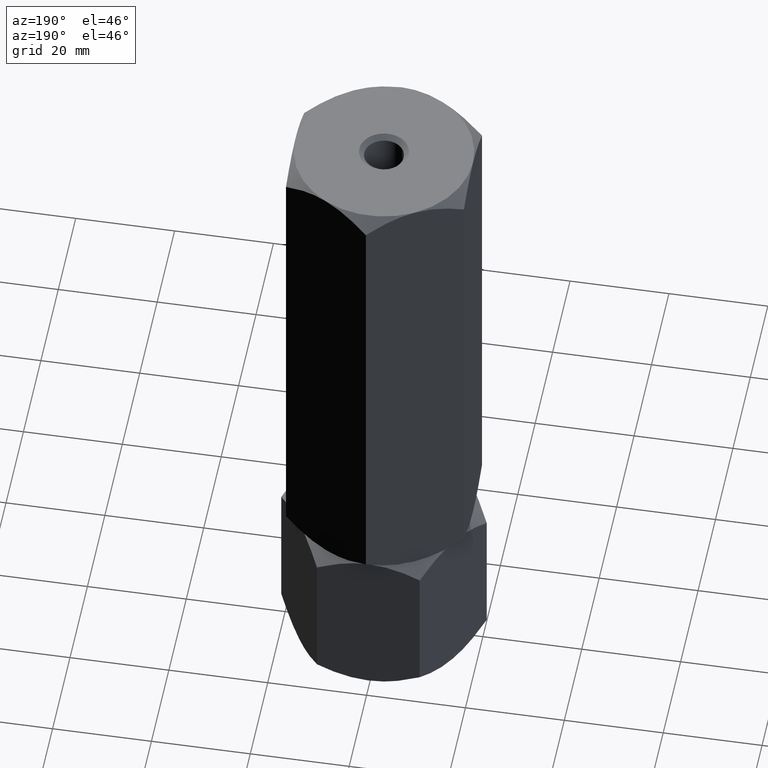
[diagram: clean part render]
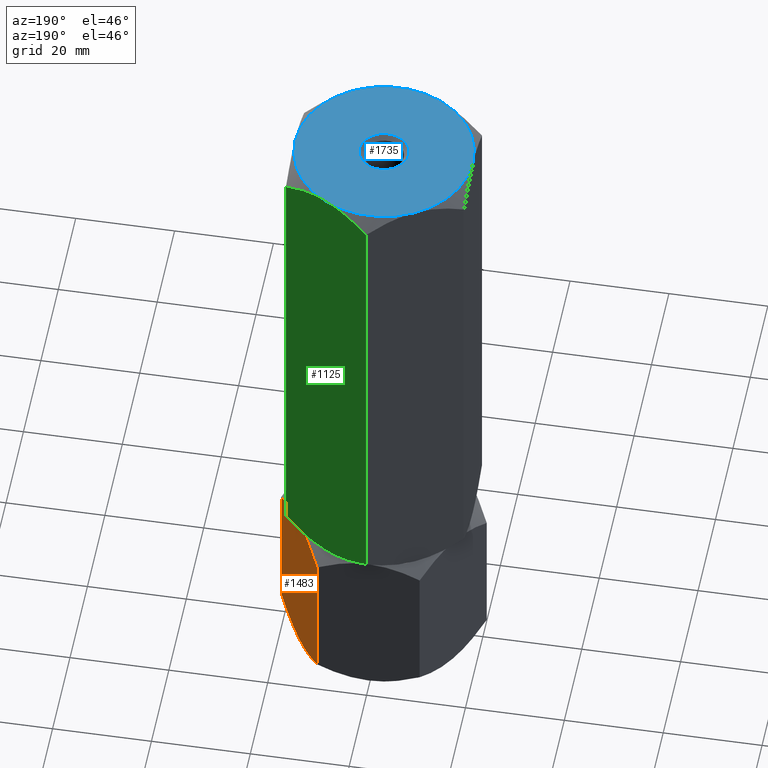
[diagram: same view with three faces highlighted in distinct colors, each labeled with its STEP entity id]
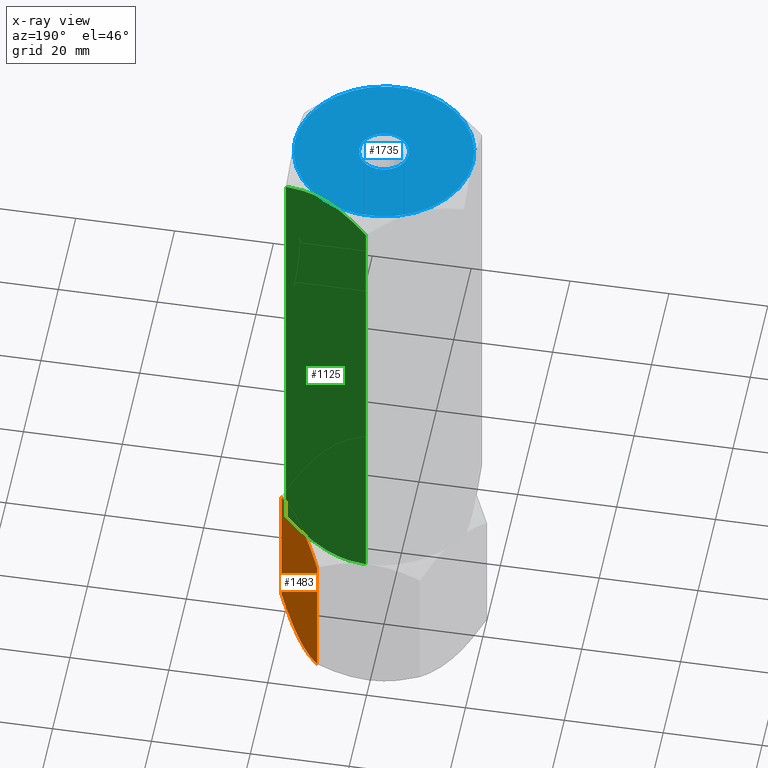
[diagram: x-ray of the same camera — body ghosted, the three highlighted faces saturated]
A machine part, auxiliary view with three faces highlighted in distinct colors.
The next image is the same camera in x-ray (body ghosted, the three faces saturated) — at least one of them is partly hidden behind the body in this view.
Their STEP definitions:

[orange] entity #1483 — the highlighted planar face has unit normal (-0.866, -0.5, 0).
#42 = CARTESIAN_POINT ( 'NONE',  ( 19.13650452186755757, 2.854601888853812497, 32.05595025544343457 ) ) ;
#86 = CARTESIAN_POINT ( 'NONE',  ( 14.44719758599053350, 10.97671975407795486, 0.1387225990985758162 ) ) ;
#91 = ORIENTED_EDGE ( 'NONE', *, *, #1867, .F. ) ;
#142 = B_SPLINE_CURVE_WITH_KNOTS ( 'NONE', 3,
 ( #878, #1704, #1720, #1199, #1868, #901 ),
 .UNSPECIFIED., .F., .F.,
 ( 4, 2, 4 ),
 ( 0.01077282027732747588, 0.01612137750481873813, 0.02146993473231000038 ),
 .UNSPECIFIED. ) ;
#159 = CARTESIAN_POINT ( 'NONE',  ( 10.39230484541325872, 18.00000000000000000, 33.33333333333330017 ) ) ;
#173 = DIRECTION ( 'NONE',  ( -0.000000000000000000, -0.000000000000000000, -1.000000000000000000 ) ) ;
#191 = CARTESIAN_POINT ( 'NONE',  ( 20.78460969082652809, 2.339913672068599110E-16, 30.54872364250677919 ) ) ;
#204 = CARTESIAN_POINT ( 'NONE',  ( 16.04483044561309057, 8.209538469370126990, 33.31600047685920885 ) ) ;
#239 = CARTESIAN_POINT ( 'NONE',  ( 11.20713682960488100, 16.58866960374795951, 1.969777706634898484 ) ) ;
#249 = CARTESIAN_POINT ( 'NONE',  ( 12.04041001437222214, 15.14539811114618928, 1.277383077889868046 ) ) ;
#262 = CARTESIAN_POINT ( 'NONE',  ( 19.13297464765287614, 2.860715810337965070, 1.272574701504243233 ) ) ;
#356 = CARTESIAN_POINT ( 'NONE',  ( 16.72971695024923733, 7.023280245922047804, 33.19461073423471476 ) ) ;
#383 = ORIENTED_EDGE ( 'NONE', *, *, #1703, .F. ) ;
#406 = CARTESIAN_POINT ( 'NONE',  ( 20.78460969082652809, 0.000000000000000000, 33.33333333333330017 ) ) ;
#434 = CARTESIAN_POINT ( 'NONE',  ( 13.77442836864821274, 12.14199022028320130, 0.3405631022552679243 ) ) ;
#479 = LINE ( 'NONE', #159, #753 ) ;
#521 = ORIENTED_EDGE ( 'NONE', *, *, #1077, .F. ) ;
#523 = CARTESIAN_POINT ( 'NONE',  ( 17.40248616759157585, 5.858009779716803145, 32.99277023107802620 ) ) ;
#530 = CARTESIAN_POINT ( 'NONE',  ( 15.58845726811989252, 9.000000000000003553, 33.33333333333330017 ) ) ;
#569 = PLANE ( 'NONE',  #955 ) ;
#595 = DIRECTION ( 'NONE',  ( 0.5000000000000002220, -0.8660254037844384856, 0.000000000000000000 ) ) ;
#603 = CARTESIAN_POINT ( 'NONE',  ( 20.78460969082652809, -4.404509159444062513E-16, 2.784609690826518769 ) ) ;
#660 = CARTESIAN_POINT ( 'NONE',  ( 17.84166640377631197, 5.097327296964722976, 32.79624777750427000 ) ) ;
#697 = ORIENTED_EDGE ( 'NONE', *, *, #1475, .F. ) ;
#715 = CARTESIAN_POINT ( 'NONE',  ( 14.67378923359657605, 10.58425150785354774, 0.08694689011815222301 ) ) ;
#729 = CARTESIAN_POINT ( 'NONE',  ( 15.13208409062669091, 9.790461530629878339, 0.01733285647408732560 ) ) ;
#753 = VECTOR ( 'NONE', #173, 1000.000000000000000 ) ;
#764 = CARTESIAN_POINT ( 'NONE',  ( 10.39230484541325872, 18.00000000000000000, 2.784609690826514328 ) ) ;
#812 = CARTESIAN_POINT ( 'NONE',  ( 19.96977770663490048, 1.411330396252048258, 31.36355562669839614 ) ) ;
#864 = CARTESIAN_POINT ( 'NONE',  ( 19.97072132548310108, 1.409696000463987353, 1.970721325483051123 ) ) ;
#869 = CARTESIAN_POINT ( 'NONE',  ( 15.58845726811989252, 9.000000000000003553, 0.000000000000000000 ) ) ;
#875 = DIRECTION ( 'NONE',  ( -0.8660254037844385966, -0.5000000000000003331, 0.000000000000000000 ) ) ;
#878 = CARTESIAN_POINT ( 'NONE',  ( 15.58845726811989252, 9.000000000000003553, 33.33333333333330017 ) ) ;
#885 = CARTESIAN_POINT ( 'NONE',  ( 16.49227650070743678, 7.434539168300463352, -2.134523027080836115E-16 ) ) ;
#901 = CARTESIAN_POINT ( 'NONE',  ( 10.39230484541325872, 18.00000000000000000, 30.54872364250678274 ) ) ;
#955 = AXIS2_PLACEMENT_3D ( 'NONE', #406, #875, #595 ) ;
#1030 = VERTEX_POINT ( 'NONE', #1235 ) ;
#1036 = CARTESIAN_POINT ( 'NONE',  ( 10.39230484541325872, 18.00000000000000000, 2.784609690826514328 ) ) ;
#1077 = EDGE_CURVE ( 'NONE', #1030, #1582, #142, .T. ) ;
#1089 = LINE ( 'NONE', #1701, #1176 ) ;
#1157 = CARTESIAN_POINT ( 'NONE',  ( 15.58845726811989252, 9.000000000000003553, 0.000000000000000000 ) ) ;
#1176 = VECTOR ( 'NONE', #1552, 1000.000000000000000 ) ;
#1199 = CARTESIAN_POINT ( 'NONE',  ( 12.04393988858690001, 15.13928418966203360, 32.06075863182906005 ) ) ;
#1207 = FACE_OUTER_BOUND ( 'NONE', #1411, .T. ) ;
#1215 = CARTESIAN_POINT ( 'NONE',  ( 13.33524813246346596, 12.90267270303527880, 0.5370855558290084097 ) ) ;
#1235 = CARTESIAN_POINT ( 'NONE',  ( 15.58845726811989252, 9.000000000000003553, 33.33333333333330017 ) ) ;
#1263 = ORIENTED_EDGE ( 'NONE', *, *, #2044, .T. ) ;
#1307 = B_SPLINE_CURVE_WITH_KNOTS ( 'NONE', 3,
 ( #191, #812, #42, #660, #523, #356, #1632, #204, #1472, #530 ),
 .UNSPECIFIED., .F., .F.,
 ( 4, 2, 2, 2, 4 ),
 ( 2.544307986817553445E-07, 0.005386537354063076002, 0.008079678815695273339, 0.009426249546511373742, 0.01077282027732747588 ),
 .UNSPECIFIED. ) ;
#1325 = VERTEX_POINT ( 'NONE', #764 ) ;
#1344 = ORIENTED_EDGE ( 'NONE', *, *, #1510, .F. ) ;
#1398 = VERTEX_POINT ( 'NONE', #1950 ) ;
#1411 = EDGE_LOOP ( 'NONE', ( #697, #1263, #1344, #91, #383, #521 ) ) ;
#1472 = CARTESIAN_POINT ( 'NONE',  ( 15.81600583360881807, 8.605874323383773117, 33.33333333333331439 ) ) ;
#1475 = EDGE_CURVE ( 'NONE', #1398, #1030, #1307, .T. ) ;
#1483 = ADVANCED_FACE ( 'NONE', ( #1207 ), #569, .F. ) ;
#1510 = EDGE_CURVE ( 'NONE', #1811, #1563, #1917, .T. ) ;
#1520 = CARTESIAN_POINT ( 'NONE',  ( 15.58845726811989252, 9.000000000000003553, 0.000000000000000000 ) ) ;
#1552 = DIRECTION ( 'NONE',  ( -0.000000000000000000, -0.000000000000000000, -1.000000000000000000 ) ) ;
#1563 = VERTEX_POINT ( 'NONE', #603 ) ;
#1567 = B_SPLINE_CURVE_WITH_KNOTS ( 'NONE', 3,
 ( #1036, #239, #249, #1215, #434, #86, #715, #729, #1706, #869 ),
 .UNSPECIFIED., .F., .F.,
 ( 4, 2, 2, 2, 4 ),
 ( 2.544307986804616605E-07, 0.005386537354063074268, 0.008079678815695271604, 0.009426249546511368538, 0.01077282027732746547 ),
 .UNSPECIFIED. ) ;
#1582 = VERTEX_POINT ( 'NONE', #1896 ) ;
#1632 = CARTESIAN_POINT ( 'NONE',  ( 16.50312530264320188, 7.415748492146455817, 33.24638644321513681 ) ) ;
#1701 = CARTESIAN_POINT ( 'NONE',  ( 20.78460969082652809, 0.000000000000000000, 33.33333333333330017 ) ) ;
#1703 = EDGE_CURVE ( 'NONE', #1582, #1325, #479, .T. ) ;
#1704 = CARTESIAN_POINT ( 'NONE',  ( 14.68463803553234470, 10.56546083169953754, 33.33333333333330017 ) ) ;
#1706 = CARTESIAN_POINT ( 'NONE',  ( 15.36090870263096519, 9.394125676616235765, 7.538593230563273018E-17 ) ) ;
#1720 = CARTESIAN_POINT ( 'NONE',  ( 13.79618737047369947, 12.10430252359948256, 33.05693742621171083 ) ) ;
#1811 = VERTEX_POINT ( 'NONE', #1157 ) ;
#1832 = CARTESIAN_POINT ( 'NONE',  ( 17.38072716576608556, 5.895697476400523662, 0.2763959071215847385 ) ) ;
#1867 = EDGE_CURVE ( 'NONE', #1325, #1811, #1567, .T. ) ;
#1868 = CARTESIAN_POINT ( 'NONE',  ( 11.20619321075668040, 16.59030399953601531, 31.36261200785025238 ) ) ;
#1896 = CARTESIAN_POINT ( 'NONE',  ( 10.39230484541325872, 18.00000000000000000, 30.54872364250678274 ) ) ;
#1917 = B_SPLINE_CURVE_WITH_KNOTS ( 'NONE', 3,
 ( #1520, #885, #1832, #262, #864, #2001 ),
 .UNSPECIFIED., .F., .F.,
 ( 4, 2, 4 ),
 ( 0.01077282027732746547, 0.01612137750481873466, 0.02146993473231000038 ),
 .UNSPECIFIED. ) ;
#1950 = CARTESIAN_POINT ( 'NONE',  ( 20.78460969082652809, 2.339913672068599110E-16, 30.54872364250677919 ) ) ;
#2001 = CARTESIAN_POINT ( 'NONE',  ( 20.78460969082652809, -4.404509159444062513E-16, 2.784609690826518769 ) ) ;
#2044 = EDGE_CURVE ( 'NONE', #1398, #1563, #1089, .T. ) ;

[blue] entity #1735 — the highlighted planar face has unit normal (0, 0, 1).
#37 = CIRCLE ( 'NONE', #1959, 4.999999999999990230 ) ;
#52 = CARTESIAN_POINT ( 'NONE',  ( 0.000000000000000000, 0.000000000000000000, 133.3333333333333144 ) ) ;
#82 = DIRECTION ( 'NONE',  ( -0.000000000000000000, -0.000000000000000000, -1.000000000000000000 ) ) ;
#118 = ORIENTED_EDGE ( 'NONE', *, *, #1338, .T. ) ;
#199 = AXIS2_PLACEMENT_3D ( 'NONE', #52, #1304, #1333 ) ;
#256 = EDGE_LOOP ( 'NONE', ( #1194, #2019 ) ) ;
#302 = VERTEX_POINT ( 'NONE', #1389 ) ;
#306 = CARTESIAN_POINT ( 'NONE',  ( 0.000000000000000000, 0.000000000000000000, 133.3333333333333144 ) ) ;
#312 = FACE_BOUND ( 'NONE', #256, .T. ) ;
#332 = DIRECTION ( 'NONE',  ( 0.000000000000000000, 0.000000000000000000, 1.000000000000000000 ) ) ;
#354 = VERTEX_POINT ( 'NONE', #945 ) ;
#362 = AXIS2_PLACEMENT_3D ( 'NONE', #306, #1414, #930 ) ;
#370 = CARTESIAN_POINT ( 'NONE',  ( 0.000000000000000000, 0.000000000000000000, 133.3333333333333144 ) ) ;
#377 = CARTESIAN_POINT ( 'NONE',  ( 0.000000000000000000, 0.000000000000000000, 133.3333333333333144 ) ) ;
#417 = VERTEX_POINT ( 'NONE', #640 ) ;
#426 = CARTESIAN_POINT ( 'NONE',  ( -9.000000000000003553, -15.58845726811989074, 133.3333333333333144 ) ) ;
#445 = EDGE_CURVE ( 'NONE', #302, #918, #1178, .T. ) ;
#504 = EDGE_CURVE ( 'NONE', #918, #1938, #947, .T. ) ;
#525 = ORIENTED_EDGE ( 'NONE', *, *, #835, .T. ) ;
#533 = AXIS2_PLACEMENT_3D ( 'NONE', #370, #1829, #694 ) ;
#542 = CARTESIAN_POINT ( 'NONE',  ( 0.000000000000000000, 0.000000000000000000, 133.3333333333333144 ) ) ;
#576 = DIRECTION ( 'NONE',  ( 0.000000000000000000, 0.000000000000000000, 1.000000000000000000 ) ) ;
#610 = DIRECTION ( 'NONE',  ( 1.000000000000000000, 0.000000000000000000, -0.000000000000000000 ) ) ;
#640 = CARTESIAN_POINT ( 'NONE',  ( -4.999999999999990230, 6.123233995736754449E-16, 133.3333333333333144 ) ) ;
#694 = DIRECTION ( 'NONE',  ( 1.000000000000000000, 0.000000000000000000, 0.000000000000000000 ) ) ;
#832 = VERTEX_POINT ( 'NONE', #1754 ) ;
#835 = EDGE_CURVE ( 'NONE', #1514, #354, #1719, .T. ) ;
#855 = DIRECTION ( 'NONE',  ( 0.000000000000000000, 0.000000000000000000, 1.000000000000000000 ) ) ;
#918 = VERTEX_POINT ( 'NONE', #1660 ) ;
#924 = EDGE_CURVE ( 'NONE', #832, #417, #37, .T. ) ;
#930 = DIRECTION ( 'NONE',  ( 1.000000000000000000, 0.000000000000000000, 0.000000000000000000 ) ) ;
#945 = CARTESIAN_POINT ( 'NONE',  ( 8.999999999999994671, -15.58845726811989785, 133.3333333333333144 ) ) ;
#947 = CIRCLE ( 'NONE', #1321, 18.00000000000000000 ) ;
#1026 = DIRECTION ( 'NONE',  ( 0.000000000000000000, 0.000000000000000000, 1.000000000000000000 ) ) ;
#1124 = CARTESIAN_POINT ( 'NONE',  ( -18.00000000000000000, 0.000000000000000000, 133.3333333333333144 ) ) ;
#1152 = AXIS2_PLACEMENT_3D ( 'NONE', #1679, #576, #1524 ) ;
#1164 = DIRECTION ( 'NONE',  ( 1.000000000000000000, 0.000000000000000000, 0.000000000000000000 ) ) ;
#1172 = ORIENTED_EDGE ( 'NONE', *, *, #1201, .T. ) ;
#1178 = CIRCLE ( 'NONE', #533, 18.00000000000000000 ) ;
#1183 = AXIS2_PLACEMENT_3D ( 'NONE', #542, #855, #1783 ) ;
#1194 = ORIENTED_EDGE ( 'NONE', *, *, #924, .T. ) ;
#1201 = EDGE_CURVE ( 'NONE', #1311, #1514, #1792, .T. ) ;
#1304 = DIRECTION ( 'NONE',  ( 0.000000000000000000, 0.000000000000000000, 1.000000000000000000 ) ) ;
#1311 = VERTEX_POINT ( 'NONE', #1124 ) ;
#1321 = AXIS2_PLACEMENT_3D ( 'NONE', #1663, #1026, #1673 ) ;
#1333 = DIRECTION ( 'NONE',  ( 1.000000000000000000, 0.000000000000000000, 0.000000000000000000 ) ) ;
#1338 = EDGE_CURVE ( 'NONE', #1938, #1311, #1356, .T. ) ;
#1356 = CIRCLE ( 'NONE', #362, 18.00000000000000000 ) ;
#1389 = CARTESIAN_POINT ( 'NONE',  ( 18.00000000000000000, 3.004629197474316879E-15, 133.3333333333333144 ) ) ;
#1401 = ORIENTED_EDGE ( 'NONE', *, *, #1434, .T. ) ;
#1414 = DIRECTION ( 'NONE',  ( 0.000000000000000000, 0.000000000000000000, 1.000000000000000000 ) ) ;
#1430 = EDGE_CURVE ( 'NONE', #417, #832, #1695, .T. ) ;
#1434 = EDGE_CURVE ( 'NONE', #354, #302, #1994, .T. ) ;
#1463 = DIRECTION ( 'NONE',  ( 1.000000000000000000, 0.000000000000000000, 0.000000000000000000 ) ) ;
#1504 = CARTESIAN_POINT ( 'NONE',  ( 0.000000000000000000, 0.000000000000000000, 133.3333333333333144 ) ) ;
#1514 = VERTEX_POINT ( 'NONE', #426 ) ;
#1519 = ORIENTED_EDGE ( 'NONE', *, *, #445, .T. ) ;
#1524 = DIRECTION ( 'NONE',  ( 1.000000000000000000, 0.000000000000000000, 0.000000000000000000 ) ) ;
#1559 = AXIS2_PLACEMENT_3D ( 'NONE', #1616, #332, #610 ) ;
#1569 = ORIENTED_EDGE ( 'NONE', *, *, #504, .T. ) ;
#1616 = CARTESIAN_POINT ( 'NONE',  ( 0.000000000000000000, 0.000000000000000000, 133.3333333333333144 ) ) ;
#1660 = CARTESIAN_POINT ( 'NONE',  ( 9.000000000000000000, 15.58845726811989252, 133.3333333333333144 ) ) ;
#1663 = CARTESIAN_POINT ( 'NONE',  ( 0.000000000000000000, 0.000000000000000000, 133.3333333333333144 ) ) ;
#1673 = DIRECTION ( 'NONE',  ( 1.000000000000000000, 0.000000000000000000, 0.000000000000000000 ) ) ;
#1679 = CARTESIAN_POINT ( 'NONE',  ( 0.000000000000000000, 0.000000000000000000, 133.3333333333333144 ) ) ;
#1695 = CIRCLE ( 'NONE', #1722, 4.999999999999990230 ) ;
#1719 = CIRCLE ( 'NONE', #199, 18.00000000000000000 ) ;
#1722 = AXIS2_PLACEMENT_3D ( 'NONE', #1504, #82, #1463 ) ;
#1735 = ADVANCED_FACE ( 'NONE', ( #312, #1880 ), #1747, .T. ) ;
#1747 = PLANE ( 'NONE',  #1559 ) ;
#1748 = EDGE_LOOP ( 'NONE', ( #1401, #1519, #1569, #118, #1172, #525 ) ) ;
#1754 = CARTESIAN_POINT ( 'NONE',  ( 4.999999999999990230, 0.000000000000000000, 133.3333333333333144 ) ) ;
#1783 = DIRECTION ( 'NONE',  ( 1.000000000000000000, 0.000000000000000000, 0.000000000000000000 ) ) ;
#1792 = CIRCLE ( 'NONE', #1152, 18.00000000000000000 ) ;
#1829 = DIRECTION ( 'NONE',  ( 0.000000000000000000, 0.000000000000000000, 1.000000000000000000 ) ) ;
#1880 = FACE_OUTER_BOUND ( 'NONE', #1748, .T. ) ;
#1899 = CARTESIAN_POINT ( 'NONE',  ( -8.999999999999998224, 15.58845726811990318, 133.3333333333333144 ) ) ;
#1938 = VERTEX_POINT ( 'NONE', #1899 ) ;
#1959 = AXIS2_PLACEMENT_3D ( 'NONE', #377, #1972, #1164 ) ;
#1972 = DIRECTION ( 'NONE',  ( -0.000000000000000000, -0.000000000000000000, -1.000000000000000000 ) ) ;
#1994 = CIRCLE ( 'NONE', #1183, 18.00000000000000000 ) ;
#2019 = ORIENTED_EDGE ( 'NONE', *, *, #1430, .T. ) ;

[green] entity #1125 — the highlighted planar face has unit normal (-0.5, -0.866, 0).
#22 = CARTESIAN_POINT ( 'NONE',  ( 9.000000000000001776, 15.58845726811989607, 33.33333333333330017 ) ) ;
#120 = CARTESIAN_POINT ( 'NONE',  ( 9.000000000000001776, 15.58845726811989607, 33.33333333333330017 ) ) ;
#153 = CARTESIAN_POINT ( 'NONE',  ( 1.409696000463994014, 19.97072132548310464, 131.3626120078502595 ) ) ;
#200 = CARTESIAN_POINT ( 'NONE',  ( 12.90267270303528235, 13.33524813246347129, 132.7962477775042771 ) ) ;
#227 = CARTESIAN_POINT ( 'NONE',  ( 10.97671975407795841, 14.44719758599053705, 133.1946107342347148 ) ) ;
#267 = DIRECTION ( 'NONE',  ( -0.000000000000000000, -0.000000000000000000, -1.000000000000000000 ) ) ;
#307 = CARTESIAN_POINT ( 'NONE',  ( 2.860715810337968179, 19.13297464765287614, 132.0607586318291169 ) ) ;
#308 = CARTESIAN_POINT ( 'NONE',  ( 15.13928418966203360, 12.04393988858690712, 34.60590803483753319 ) ) ;
#341 = CARTESIAN_POINT ( 'NONE',  ( 9.394125676616232212, 15.36090870263097052, 133.3333333333332860 ) ) ;
#381 = CARTESIAN_POINT ( 'NONE',  ( 15.14539811114619106, 12.04041001437222569, 132.0559502554434346 ) ) ;
#390 = AXIS2_PLACEMENT_3D ( 'NONE', #1971, #1785, #1813 ) ;
#402 = CARTESIAN_POINT ( 'NONE',  ( 9.000000000000001776, 15.58845726811989607, 33.33333333333330017 ) ) ;
#423 = VECTOR ( 'NONE', #902, 1000.000000000000000 ) ;
#454 = B_SPLINE_CURVE_WITH_KNOTS ( 'NONE', 3,
 ( #1529, #745, #1376, #1818, #892, #587, #1976, #860, #1664, #402 ),
 .UNSPECIFIED., .F., .F.,
 ( 4, 2, 2, 2, 4 ),
 ( 2.544307986820942635E-07, 0.005386537354063077737, 0.008079678815695275074, 0.009426249546511375477, 0.01077282027732747414 ),
 .UNSPECIFIED. ) ;
#472 = CARTESIAN_POINT ( 'NONE',  ( 12.10430252359948256, 13.79618737047370303, 33.60972924045488952 ) ) ;
#510 = CARTESIAN_POINT ( 'NONE',  ( 10.58425150785354774, 14.67378923359657961, 133.2463864432151013 ) ) ;
#537 = CARTESIAN_POINT ( 'NONE',  ( 16.58866960374796307, 11.20713682960488278, 131.3635556266983428 ) ) ;
#582 = ORIENTED_EDGE ( 'NONE', *, *, #708, .F. ) ;
#587 = CARTESIAN_POINT ( 'NONE',  ( 7.023280245922047804, 16.72971695024925154, 33.47205593243187138 ) ) ;
#597 = CARTESIAN_POINT ( 'NONE',  ( 18.00000000000000000, 10.39230484541326760, 133.3333333333333144 ) ) ;
#605 = LINE ( 'NONE', #597, #1254 ) ;
#616 = CARTESIAN_POINT ( 'NONE',  ( -1.925929944387235853E-30, 20.78460969082653165, 133.3333333333333144 ) ) ;
#622 = ORIENTED_EDGE ( 'NONE', *, *, #1649, .F. ) ;
#708 = EDGE_CURVE ( 'NONE', #1204, #1052, #891, .T. ) ;
#745 = CARTESIAN_POINT ( 'NONE',  ( 1.411330396252046038, 19.96977770663491469, 35.30311103996820066 ) ) ;
#775 = EDGE_CURVE ( 'NONE', #2049, #833, #1253, .T. ) ;
#776 = CARTESIAN_POINT ( 'NONE',  ( 2.023902932232340556E-15, 20.78460969082653165, 130.5487236425067863 ) ) ;
#817 = FACE_OUTER_BOUND ( 'NONE', #1370, .T. ) ;
#833 = VERTEX_POINT ( 'NONE', #1943 ) ;
#858 = CARTESIAN_POINT ( 'NONE',  ( 18.00000000000000355, 10.39230484541326582, 130.5487236425067863 ) ) ;
#860 = CARTESIAN_POINT ( 'NONE',  ( 8.209538469370123437, 16.04483044561310123, 33.35066618980737019 ) ) ;
#891 = LINE ( 'NONE', #616, #423 ) ;
#892 = CARTESIAN_POINT ( 'NONE',  ( 5.858009779716801368, 17.40248616759157585, 33.67389643558856704 ) ) ;
#902 = DIRECTION ( 'NONE',  ( -0.000000000000000000, -0.000000000000000000, -1.000000000000000000 ) ) ;
#918 = VERTEX_POINT ( 'NONE', #1660 ) ;
#970 = CARTESIAN_POINT ( 'NONE',  ( 9.000000000000000000, 15.58845726811989252, 133.3333333333333144 ) ) ;
#1052 = VERTEX_POINT ( 'NONE', #1407 ) ;
#1091 = CARTESIAN_POINT ( 'NONE',  ( 9.000000000000000000, 15.58845726811989252, 133.3333333333333144 ) ) ;
#1125 = ADVANCED_FACE ( 'NONE', ( #817 ), #1416, .F. ) ;
#1127 = CARTESIAN_POINT ( 'NONE',  ( 10.56546083169953754, 14.68463803553235181, 33.33333333333330017 ) ) ;
#1130 = CARTESIAN_POINT ( 'NONE',  ( 9.790461530629878339, 15.13208409062669269, 133.3160004768592160 ) ) ;
#1160 = EDGE_CURVE ( 'NONE', #1891, #833, #605, .T. ) ;
#1204 = VERTEX_POINT ( 'NONE', #1373 ) ;
#1229 = ORIENTED_EDGE ( 'NONE', *, *, #1160, .T. ) ;
#1253 = B_SPLINE_CURVE_WITH_KNOTS ( 'NONE', 3,
 ( #22, #1127, #472, #308, #1901, #1282 ),
 .UNSPECIFIED., .F., .F.,
 ( 4, 2, 4 ),
 ( 0.01077282027732747414, 0.01612137750481873813, 0.02146993473231000038 ),
 .UNSPECIFIED. ) ;
#1254 = VECTOR ( 'NONE', #267, 1000.000000000000000 ) ;
#1282 = CARTESIAN_POINT ( 'NONE',  ( 18.00000000000000000, 10.39230484541326760, 36.11794302415981406 ) ) ;
#1318 = B_SPLINE_CURVE_WITH_KNOTS ( 'NONE', 3,
 ( #1955, #537, #381, #200, #1653, #227, #510, #1130, #341, #970 ),
 .UNSPECIFIED., .F., .F.,
 ( 4, 2, 2, 2, 4 ),
 ( 2.544307986816325776E-07, 0.005386537354063073400, 0.008079678815695268135, 0.009426249546511368538, 0.01077282027732746721 ),
 .UNSPECIFIED. ) ;
#1370 = EDGE_LOOP ( 'NONE', ( #1495, #1229, #1388, #1802, #582, #622 ) ) ;
#1373 = CARTESIAN_POINT ( 'NONE',  ( 2.023902932232340556E-15, 20.78460969082653165, 130.5487236425067863 ) ) ;
#1376 = CARTESIAN_POINT ( 'NONE',  ( 2.854601888853812941, 19.13650452186757178, 34.61071641122317288 ) ) ;
#1388 = ORIENTED_EDGE ( 'NONE', *, *, #775, .F. ) ;
#1407 = CARTESIAN_POINT ( 'NONE',  ( 8.283054731729360895E-16, 20.78460969082653165, 36.11794302415982116 ) ) ;
#1416 = PLANE ( 'NONE',  #390 ) ;
#1440 = CARTESIAN_POINT ( 'NONE',  ( 7.434539168300460688, 16.49227650070744033, 133.3333333333333144 ) ) ;
#1495 = ORIENTED_EDGE ( 'NONE', *, *, #1839, .F. ) ;
#1496 = B_SPLINE_CURVE_WITH_KNOTS ( 'NONE', 3,
 ( #1091, #1440, #1731, #307, #153, #776 ),
 .UNSPECIFIED., .F., .F.,
 ( 4, 2, 4 ),
 ( 0.01077282027732746721, 0.01612137750481873119, 0.02146993473230999344 ),
 .UNSPECIFIED. ) ;
#1529 = CARTESIAN_POINT ( 'NONE',  ( 8.283054731729360895E-16, 20.78460969082653165, 36.11794302415982116 ) ) ;
#1649 = EDGE_CURVE ( 'NONE', #918, #1204, #1496, .T. ) ;
#1653 = CARTESIAN_POINT ( 'NONE',  ( 12.14199022028320485, 13.77442836864822162, 132.9927702310780546 ) ) ;
#1660 = CARTESIAN_POINT ( 'NONE',  ( 9.000000000000000000, 15.58845726811989252, 133.3333333333333144 ) ) ;
#1664 = CARTESIAN_POINT ( 'NONE',  ( 8.605874323383771340, 15.81600583360882517, 33.33333333333330017 ) ) ;
#1731 = CARTESIAN_POINT ( 'NONE',  ( 5.895697476400526327, 17.38072716576608912, 133.0569374262117321 ) ) ;
#1785 = DIRECTION ( 'NONE',  ( -0.5000000000000001110, -0.8660254037844387076, 0.000000000000000000 ) ) ;
#1802 = ORIENTED_EDGE ( 'NONE', *, *, #1864, .F. ) ;
#1813 = DIRECTION ( 'NONE',  ( 0.8660254037844385966, -0.5000000000000000000, 0.000000000000000000 ) ) ;
#1818 = CARTESIAN_POINT ( 'NONE',  ( 5.097327296964724752, 17.84166640377631907, 33.87041888916230903 ) ) ;
#1839 = EDGE_CURVE ( 'NONE', #1891, #918, #1318, .T. ) ;
#1864 = EDGE_CURVE ( 'NONE', #1052, #2049, #454, .T. ) ;
#1891 = VERTEX_POINT ( 'NONE', #858 ) ;
#1901 = CARTESIAN_POINT ( 'NONE',  ( 16.59030399953601531, 11.20619321075668751, 35.30405465881634797 ) ) ;
#1943 = CARTESIAN_POINT ( 'NONE',  ( 18.00000000000000000, 10.39230484541326760, 36.11794302415981406 ) ) ;
#1955 = CARTESIAN_POINT ( 'NONE',  ( 18.00000000000000355, 10.39230484541326582, 130.5487236425067863 ) ) ;
#1971 = CARTESIAN_POINT ( 'NONE',  ( 18.00000000000000000, 10.39230484541326760, 133.3333333333333144 ) ) ;
#1976 = CARTESIAN_POINT ( 'NONE',  ( 7.415748492146454929, 16.50312530264320898, 33.42028022345144933 ) ) ;
#2049 = VERTEX_POINT ( 'NONE', #120 ) ;